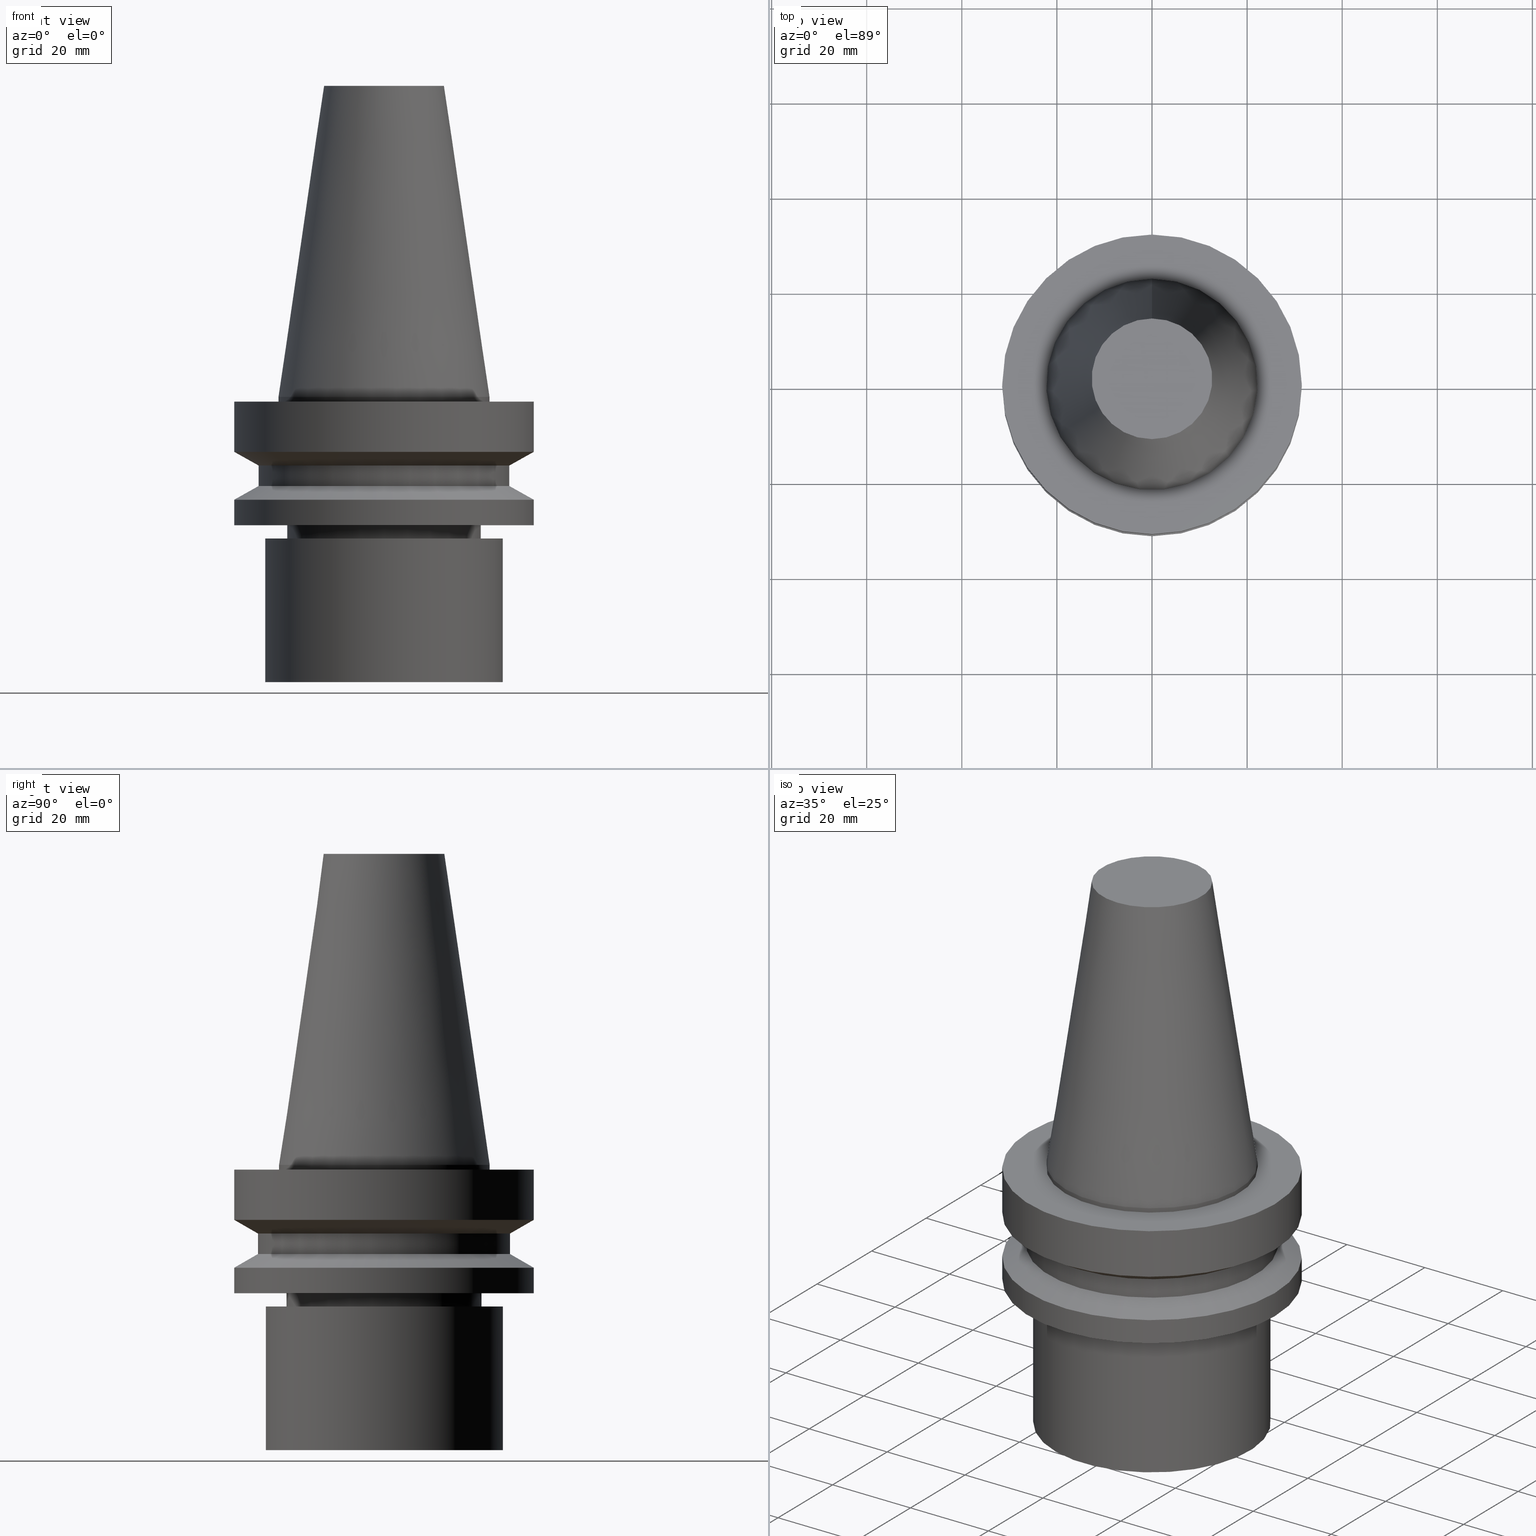
[diagram: canonical four-view strip — front | top / right | iso, engineering-drawing reading convention]
A machine part, canonical four-view strip (front | top / right | iso — engineering-drawing reading convention). The complete STEP part file that produces these views, byte-faithful:
ISO-10303-21;
HEADER;
FILE_DESCRIPTION((''),'1');
FILE_NAME('V:/90_\X2\53D65F9730C730FC30BF\X0\/00_\X2\6DE18DEF30C730FC30BF\X0\/ALL/BBT-BKUS\X2\FF76FF80FF9BFF78FF9E752852A05DE556F3\X0\201801/BBT40-MEGAER/BBT40-MEGAER32-60NL.stp','2018-02-07T02:26:05',(''),(''),'Spatial Interop R21 SP3','Kubotek KeyCreator 2011 V10.0.2 (22737)',' ');
FILE_SCHEMA(('automotive_design'));
ENDSEC;
DATA;
#1=MECHANICAL_DESIGN_GEOMETRIC_PRESENTATION_REPRESENTATION(' ',(#14,#15,#16,#17,#18,#19,#20,#21,#22,#23,#24,#25,#26,#27,#28,#29,#30,#31,#32,#33,#34,#35,#36,#37,#38,#39,#40,#41,#42,#43,#44,#45,#46,#47,#48,#49),#10);
#2=PRODUCT_DEFINITION_CONTEXT('',#50,'design');
#3=APPLICATION_PROTOCOL_DEFINITION('INTERNATIONAL STANDARD','automotive_design',1994,#50);
#4=PRODUCT_CATEGORY_RELATIONSHIP('NONE','NONE',#51,#52);
#5=SHAPE_DEFINITION_REPRESENTATION(#53,#54);
#6=PRODUCT_DEFINITION_CONTEXT('',#55,'design');
#7=APPLICATION_PROTOCOL_DEFINITION('INTERNATIONAL STANDARD','automotive_design',1994,#55);
#8=PRODUCT_CATEGORY_RELATIONSHIP('NONE','NONE',#56,#57);
#9=SHAPE_DEFINITION_REPRESENTATION(#58,#59);
#10= (GEOMETRIC_REPRESENTATION_CONTEXT(3)GLOBAL_UNCERTAINTY_ASSIGNED_CONTEXT((#62))GLOBAL_UNIT_ASSIGNED_CONTEXT((#64,#65,#66))REPRESENTATION_CONTEXT('NONE','WORKSPACE'));
#14=STYLED_ITEM('',(#68),#69);
#15=STYLED_ITEM('',(#70,#71),#72);
#16=STYLED_ITEM('',(#73),#74);
#17=STYLED_ITEM('',(#75,#76),#77);
#18=STYLED_ITEM('',(#78,#79),#80);
#19=STYLED_ITEM('',(#81),#82);
#20=STYLED_ITEM('',(#83,#84),#85);
#21=STYLED_ITEM('',(#86),#87);
#22=STYLED_ITEM('',(#88,#89),#90);
#23=STYLED_ITEM('',(#91),#92);
#24=STYLED_ITEM('',(#93,#94),#95);
#25=STYLED_ITEM('',(#96),#97);
#26=STYLED_ITEM('',(#98,#99),#100);
#27=STYLED_ITEM('',(#101,#102),#103);
#28=STYLED_ITEM('',(#104),#105);
#29=STYLED_ITEM('',(#106,#107),#108);
#30=STYLED_ITEM('',(#109),#110);
#31=STYLED_ITEM('',(#111,#112),#113);
#32=STYLED_ITEM('',(#114,#115),#116);
#33=STYLED_ITEM('',(#117),#118);
#34=STYLED_ITEM('',(#119),#120);
#35=STYLED_ITEM('',(#121),#122);
#36=STYLED_ITEM('',(#123,#124),#125);
#37=STYLED_ITEM('',(#126),#127);
#38=STYLED_ITEM('',(#128),#129);
#39=STYLED_ITEM('',(#130),#131);
#40=STYLED_ITEM('',(#132,#133),#134);
#41=STYLED_ITEM('',(#135),#136);
#42=STYLED_ITEM('',(#137,#138),#139);
#43=STYLED_ITEM('',(#140,#141),#142);
#44=STYLED_ITEM('',(#143,#144),#145);
#45=STYLED_ITEM('',(#146,#147),#148);
#46=STYLED_ITEM('',(#149,#150),#151);
#47=STYLED_ITEM('',(#152,#153),#154);
#48=STYLED_ITEM('',(#155,#156),#157);
#49=STYLED_ITEM('',(#158),#159);
#50=APPLICATION_CONTEXT(' ');
#51=PRODUCT_CATEGORY('part','NONE');
#52=PRODUCT_RELATED_PRODUCT_CATEGORY('detail',' ',(#160));
#53=PRODUCT_DEFINITION_SHAPE('NONE','NONE',#161);
#54=ADVANCED_BREP_SHAPE_REPRESENTATION('Unnamed[1]',(#108,#162),#10);
#55=APPLICATION_CONTEXT(' ');
#56=PRODUCT_CATEGORY('part','NONE');
#57=PRODUCT_RELATED_PRODUCT_CATEGORY('detail',' ',(#163));
#58=PRODUCT_DEFINITION_SHAPE('NONE','NONE',#164);
#59=ADVANCED_BREP_SHAPE_REPRESENTATION('Unnamed[1]',(#116,#165),#10);
#62=UNCERTAINTY_MEASURE_WITH_UNIT(LENGTH_MEASURE(1.0E-006),#64,'','');
#64= (CONVERSION_BASED_UNIT('MILLIMETRE',#168)LENGTH_UNIT()NAMED_UNIT(#171));
#65= (NAMED_UNIT(#173)PLANE_ANGLE_UNIT()SI_UNIT($,.RADIAN.));
#66= (NAMED_UNIT(#173)SOLID_ANGLE_UNIT()SI_UNIT($,.STERADIAN.));
#68=PRESENTATION_STYLE_ASSIGNMENT((#179));
#69=EDGE_CURVE('Unnamed[1]',#180,#180,#181,.T.);
#70=PRESENTATION_STYLE_ASSIGNMENT((#182));
#71=PRESENTATION_STYLE_ASSIGNMENT((#183));
#72=ADVANCED_FACE('Unnamed[1]',(#184,#185),#186,.T.);
#73=PRESENTATION_STYLE_ASSIGNMENT((#187));
#74=EDGE_CURVE('Unnamed[1]',#188,#188,#189,.T.);
#75=PRESENTATION_STYLE_ASSIGNMENT((#190));
#76=PRESENTATION_STYLE_ASSIGNMENT((#191));
#77=ADVANCED_FACE('Unnamed[1]',(#192,#193),#194,.T.);
#78=PRESENTATION_STYLE_ASSIGNMENT((#195));
#79=PRESENTATION_STYLE_ASSIGNMENT((#196));
#80=ADVANCED_FACE('Unnamed[1]',(#197),#198,.T.);
#81=PRESENTATION_STYLE_ASSIGNMENT((#199));
#82=EDGE_CURVE('Unnamed[1]',#200,#200,#201,.T.);
#83=PRESENTATION_STYLE_ASSIGNMENT((#202));
#84=PRESENTATION_STYLE_ASSIGNMENT((#203));
#85=ADVANCED_FACE('Unnamed[1]',(#204,#205),#206,.T.);
#86=PRESENTATION_STYLE_ASSIGNMENT((#207));
#87=EDGE_CURVE('Unnamed[1]',#208,#208,#209,.T.);
#88=PRESENTATION_STYLE_ASSIGNMENT((#210));
#89=PRESENTATION_STYLE_ASSIGNMENT((#211));
#90=ADVANCED_FACE('Unnamed[1]',(#212,#213),#214,.T.);
#91=PRESENTATION_STYLE_ASSIGNMENT((#215));
#92=EDGE_CURVE('Unnamed[1]',#216,#216,#217,.T.);
#93=PRESENTATION_STYLE_ASSIGNMENT((#218));
#94=PRESENTATION_STYLE_ASSIGNMENT((#219));
#95=ADVANCED_FACE('Unnamed[1]',(#220,#221),#222,.T.);
#96=PRESENTATION_STYLE_ASSIGNMENT((#223));
#97=EDGE_CURVE('Unnamed[1]',#224,#224,#225,.T.);
#98=PRESENTATION_STYLE_ASSIGNMENT((#226));
#99=PRESENTATION_STYLE_ASSIGNMENT((#227));
#100=ADVANCED_FACE('Unnamed[1]',(#228,#229),#230,.T.);
#101=PRESENTATION_STYLE_ASSIGNMENT((#231));
#102=PRESENTATION_STYLE_ASSIGNMENT((#232));
#103=ADVANCED_FACE('Unnamed[1]',(#233,#234),#235,.T.);
#104=PRESENTATION_STYLE_ASSIGNMENT((#236));
#105=EDGE_CURVE('Unnamed[1]',#237,#237,#238,.T.);
#106=PRESENTATION_STYLE_ASSIGNMENT((#239));
#107=PRESENTATION_STYLE_ASSIGNMENT((#240));
#108=MANIFOLD_SOLID_BREP('Unnamed[1]',#241);
#109=PRESENTATION_STYLE_ASSIGNMENT((#242));
#110=EDGE_CURVE('Unnamed[1]',#243,#243,#244,.T.);
#111=PRESENTATION_STYLE_ASSIGNMENT((#245));
#112=PRESENTATION_STYLE_ASSIGNMENT((#246));
#113=ADVANCED_FACE('Unnamed[1]',(#247,#248),#249,.T.);
#114=PRESENTATION_STYLE_ASSIGNMENT((#250));
#115=PRESENTATION_STYLE_ASSIGNMENT((#251));
#116=MANIFOLD_SOLID_BREP('Unnamed[1]',#252);
#117=PRESENTATION_STYLE_ASSIGNMENT((#253));
#118=EDGE_CURVE('Unnamed[1]',#254,#254,#255,.T.);
#119=PRESENTATION_STYLE_ASSIGNMENT((#256));
#120=EDGE_CURVE('Unnamed[1]',#257,#257,#258,.T.);
#121=PRESENTATION_STYLE_ASSIGNMENT((#259));
#122=EDGE_CURVE('Unnamed[1]',#260,#260,#261,.T.);
#123=PRESENTATION_STYLE_ASSIGNMENT((#262));
#124=PRESENTATION_STYLE_ASSIGNMENT((#263));
#125=ADVANCED_FACE('Unnamed[1]',(#264,#265),#266,.T.);
#126=PRESENTATION_STYLE_ASSIGNMENT((#267));
#127=EDGE_CURVE('Unnamed[1]',#268,#268,#269,.T.);
#128=PRESENTATION_STYLE_ASSIGNMENT((#270));
#129=EDGE_CURVE('Unnamed[1]',#271,#271,#272,.T.);
#130=PRESENTATION_STYLE_ASSIGNMENT((#273));
#131=EDGE_CURVE('Unnamed[1]',#274,#274,#275,.T.);
#132=PRESENTATION_STYLE_ASSIGNMENT((#276));
#133=PRESENTATION_STYLE_ASSIGNMENT((#277));
#134=ADVANCED_FACE('Unnamed[1]',(#278,#279),#280,.T.);
#135=PRESENTATION_STYLE_ASSIGNMENT((#281));
#136=EDGE_CURVE('Unnamed[1]',#282,#282,#283,.T.);
#137=PRESENTATION_STYLE_ASSIGNMENT((#284));
#138=PRESENTATION_STYLE_ASSIGNMENT((#285));
#139=ADVANCED_FACE('Unnamed[1]',(#286),#287,.T.);
#140=PRESENTATION_STYLE_ASSIGNMENT((#288));
#141=PRESENTATION_STYLE_ASSIGNMENT((#289));
#142=ADVANCED_FACE('Unnamed[1]',(#290,#291),#292,.T.);
#143=PRESENTATION_STYLE_ASSIGNMENT((#293));
#144=PRESENTATION_STYLE_ASSIGNMENT((#294));
#145=ADVANCED_FACE('Unnamed[1]',(#295,#296),#297,.T.);
#146=PRESENTATION_STYLE_ASSIGNMENT((#298));
#147=PRESENTATION_STYLE_ASSIGNMENT((#299));
#148=ADVANCED_FACE('Unnamed[1]',(#300),#301,.T.);
#149=PRESENTATION_STYLE_ASSIGNMENT((#302));
#150=PRESENTATION_STYLE_ASSIGNMENT((#303));
#151=ADVANCED_FACE('Unnamed[1]',(#304,#305),#306,.T.);
#152=PRESENTATION_STYLE_ASSIGNMENT((#307));
#153=PRESENTATION_STYLE_ASSIGNMENT((#308));
#154=ADVANCED_FACE('Unnamed[1]',(#309),#310,.T.);
#155=PRESENTATION_STYLE_ASSIGNMENT((#311));
#156=PRESENTATION_STYLE_ASSIGNMENT((#312));
#157=ADVANCED_FACE('Unnamed[1]',(#313,#314),#315,.T.);
#158=PRESENTATION_STYLE_ASSIGNMENT((#316));
#159=EDGE_CURVE('Unnamed[1]',#317,#317,#318,.T.);
#160=PRODUCT('Unnamed[1]','Unnamed[1]','PART-Unnamed[1]-DESC',(#319));
#161=PRODUCT_DEFINITION('NONE','NONE',#320,#2);
#162=AXIS2_PLACEMENT_3D('',#321,#322,#323);
#163=PRODUCT('Unnamed[1]','Unnamed[1]','PART-Unnamed[1]-DESC',(#324));
#164=PRODUCT_DEFINITION('NONE','NONE',#325,#6);
#165=AXIS2_PLACEMENT_3D('',#326,#327,#328);
#168=LENGTH_MEASURE_WITH_UNIT(LENGTH_MEASURE(1.0),#329);
#171=DIMENSIONAL_EXPONENTS(1.0,0.0,0.0,0.0,0.0,0.0,0.0);
#173=DIMENSIONAL_EXPONENTS(0.0,0.0,0.0,0.0,0.0,0.0,0.0);
#179=CURVE_STYLE('',#330,POSITIVE_LENGTH_MEASURE(1000.0),#331);
#180=VERTEX_POINT('',#332);
#181=CIRCLE('',#333,31.5000000000004);
#182=SURFACE_STYLE_USAGE(.BOTH.,#334);
#183=CURVE_STYLE('',#335,POSITIVE_LENGTH_MEASURE(1000.0),#336);
#184=FACE_OUTER_BOUND('',#337,.T.);
#185=FACE_BOUND('',#338,.T.);
#186=PLANE('',#339);
#187=CURVE_STYLE('',#340,POSITIVE_LENGTH_MEASURE(1000.0),#341);
#188=VERTEX_POINT('',#342);
#189=CIRCLE('',#343,25.0);
#190=SURFACE_STYLE_USAGE(.BOTH.,#344);
#191=CURVE_STYLE('',#345,POSITIVE_LENGTH_MEASURE(1000.0),#346);
#192=FACE_BOUND('',#347,.T.);
#193=FACE_BOUND('',#348,.T.);
#194=CYLINDRICAL_SURFACE('',#349,26.4999999999997);
#195=SURFACE_STYLE_USAGE(.BOTH.,#350);
#196=CURVE_STYLE('',#351,POSITIVE_LENGTH_MEASURE(1000.0),#352);
#197=FACE_OUTER_BOUND('',#353,.T.);
#198=PLANE('',#354);
#199=CURVE_STYLE('',#355,POSITIVE_LENGTH_MEASURE(1000.0),#356);
#200=VERTEX_POINT('',#357);
#201=CIRCLE('',#358,12.6875000000001);
#202=SURFACE_STYLE_USAGE(.BOTH.,#359);
#203=CURVE_STYLE('',#360,POSITIVE_LENGTH_MEASURE(1000.0),#361);
#204=FACE_BOUND('',#362,.T.);
#205=FACE_BOUND('',#363,.T.);
#206=CONICAL_SURFACE('',#364,28.9999999999999,1.04719755119657);
#207=CURVE_STYLE('',#365,POSITIVE_LENGTH_MEASURE(1000.0),#366);
#208=VERTEX_POINT('',#367);
#209=CIRCLE('',#368,20.0);
#210=SURFACE_STYLE_USAGE(.BOTH.,#369);
#211=CURVE_STYLE('',#370,POSITIVE_LENGTH_MEASURE(1000.0),#371);
#212=FACE_BOUND('',#372,.T.);
#213=FACE_BOUND('',#373,.T.);
#214=CONICAL_SURFACE('',#374,29.0000000000004,1.04719755119651);
#215=CURVE_STYLE('',#375,POSITIVE_LENGTH_MEASURE(1000.0),#376);
#216=VERTEX_POINT('',#377);
#217=CIRCLE('',#378,31.5000000000004);
#218=SURFACE_STYLE_USAGE(.BOTH.,#379);
#219=CURVE_STYLE('',#380,POSITIVE_LENGTH_MEASURE(1000.0),#381);
#220=FACE_BOUND('',#382,.T.);
#221=FACE_BOUND('',#383,.T.);
#222=CYLINDRICAL_SURFACE('',#384,22.225);
#223=CURVE_STYLE('',#385,POSITIVE_LENGTH_MEASURE(1000.0),#386);
#224=VERTEX_POINT('',#387);
#225=CIRCLE('',#388,20.4999999999911);
#226=SURFACE_STYLE_USAGE(.BOTH.,#389);
#227=CURVE_STYLE('',#390,POSITIVE_LENGTH_MEASURE(1000.0),#391);
#228=FACE_BOUND('',#392,.T.);
#229=FACE_BOUND('',#393,.T.);
#230=CYLINDRICAL_SURFACE('',#394,31.5);
#231=SURFACE_STYLE_USAGE(.BOTH.,#395);
#232=CURVE_STYLE('',#396,POSITIVE_LENGTH_MEASURE(1000.0),#397);
#233=FACE_BOUND('',#398,.T.);
#234=FACE_BOUND('',#399,.T.);
#235=CONICAL_SURFACE('',#400,20.2500000000006,1.04719755120245);
#236=CURVE_STYLE('',#401,POSITIVE_LENGTH_MEASURE(1000.0),#402);
#237=VERTEX_POINT('',#403);
#238=CIRCLE('',#404,20.5000000000011);
#239=SURFACE_STYLE_USAGE(.BOTH.,#405);
#240=CURVE_STYLE('',#406,POSITIVE_LENGTH_MEASURE(1000.0),#407);
#241=CLOSED_SHELL('',(#80,#125,#95,#72,#100,#85,#77,#90,#142,#151,#134,#103,#145,#113,#154));
#242=CURVE_STYLE('',#408,POSITIVE_LENGTH_MEASURE(1000.0),#409);
#243=VERTEX_POINT('',#410);
#244=CIRCLE('',#411,20.0);
#245=SURFACE_STYLE_USAGE(.BOTH.,#412);
#246=CURVE_STYLE('',#413,POSITIVE_LENGTH_MEASURE(1000.0),#414);
#247=FACE_BOUND('',#415,.T.);
#248=FACE_BOUND('',#416,.T.);
#249=CONICAL_SURFACE('',#417,19.4499999999999,0.523598775598221);
#250=SURFACE_STYLE_USAGE(.BOTH.,#418);
#251=CURVE_STYLE('',#419,POSITIVE_LENGTH_MEASURE(1000.0),#420);
#252=CLOSED_SHELL('',(#139,#148,#157));
#253=CURVE_STYLE('',#421,POSITIVE_LENGTH_MEASURE(1000.0),#422);
#254=VERTEX_POINT('',#423);
#255=CIRCLE('',#424,26.4999999999994);
#256=CURVE_STYLE('',#425,POSITIVE_LENGTH_MEASURE(1000.0),#426);
#257=VERTEX_POINT('',#427);
#258=CIRCLE('',#428,31.5000000000007);
#259=CURVE_STYLE('',#429,POSITIVE_LENGTH_MEASURE(1000.0),#430);
#260=VERTEX_POINT('',#431);
#261=CIRCLE('',#432,25.0);
#262=SURFACE_STYLE_USAGE(.BOTH.,#433);
#263=CURVE_STYLE('',#434,POSITIVE_LENGTH_MEASURE(1000.0),#435);
#264=FACE_BOUND('',#436,.T.);
#265=FACE_BOUND('',#437,.T.);
#266=CONICAL_SURFACE('',#438,17.4562500000001,0.144812498238936);
#267=CURVE_STYLE('',#439,POSITIVE_LENGTH_MEASURE(1000.0),#440);
#268=VERTEX_POINT('',#441);
#269=CIRCLE('',#442,31.4999999999997);
#270=CURVE_STYLE('',#443,POSITIVE_LENGTH_MEASURE(1000.0),#444);
#271=VERTEX_POINT('',#445);
#272=CIRCLE('',#446,26.5);
#273=CURVE_STYLE('',#447,POSITIVE_LENGTH_MEASURE(1000.0),#448);
#274=VERTEX_POINT('',#449);
#275=CIRCLE('',#450,18.8999999999997);
#276=SURFACE_STYLE_USAGE(.BOTH.,#451);
#277=CURVE_STYLE('',#452,POSITIVE_LENGTH_MEASURE(1000.0),#453);
#278=FACE_BOUND('',#454,.T.);
#279=FACE_BOUND('',#455,.T.);
#280=CYLINDRICAL_SURFACE('',#456,20.4999999999961);
#281=CURVE_STYLE('',#457,POSITIVE_LENGTH_MEASURE(1000.0),#458);
#282=VERTEX_POINT('',#459);
#283=CIRCLE('',#460,22.225);
#284=SURFACE_STYLE_USAGE(.BOTH.,#461);
#285=CURVE_STYLE('',#462,POSITIVE_LENGTH_MEASURE(1000.0),#463);
#286=FACE_OUTER_BOUND('',#464,.T.);
#287=PLANE('',#465);
#288=SURFACE_STYLE_USAGE(.BOTH.,#466);
#289=CURVE_STYLE('',#467,POSITIVE_LENGTH_MEASURE(1000.0),#468);
#290=FACE_BOUND('',#469,.T.);
#291=FACE_BOUND('',#470,.T.);
#292=CYLINDRICAL_SURFACE('',#471,31.5000000000005);
#293=SURFACE_STYLE_USAGE(.BOTH.,#472);
#294=CURVE_STYLE('',#473,POSITIVE_LENGTH_MEASURE(1000.0),#474);
#295=FACE_BOUND('',#475,.T.);
#296=FACE_BOUND('',#476,.T.);
#297=CYLINDRICAL_SURFACE('',#477,20.0);
#298=SURFACE_STYLE_USAGE(.BOTH.,#478);
#299=CURVE_STYLE('',#479,POSITIVE_LENGTH_MEASURE(1000.0),#480);
#300=FACE_OUTER_BOUND('',#481,.T.);
#301=PLANE('',#482);
#302=SURFACE_STYLE_USAGE(.BOTH.,#483);
#303=CURVE_STYLE('',#484,POSITIVE_LENGTH_MEASURE(1000.0),#485);
#304=FACE_BOUND('',#486,.T.);
#305=FACE_OUTER_BOUND('',#487,.T.);
#306=PLANE('',#488);
#307=SURFACE_STYLE_USAGE(.BOTH.,#489);
#308=CURVE_STYLE('',#490,POSITIVE_LENGTH_MEASURE(1000.0),#491);
#309=FACE_OUTER_BOUND('',#492,.T.);
#310=PLANE('',#493);
#311=SURFACE_STYLE_USAGE(.BOTH.,#494);
#312=CURVE_STYLE('',#495,POSITIVE_LENGTH_MEASURE(1000.0),#496);
#313=FACE_BOUND('',#497,.T.);
#314=FACE_BOUND('',#498,.T.);
#315=CYLINDRICAL_SURFACE('',#499,25.0);
#316=CURVE_STYLE('',#500,POSITIVE_LENGTH_MEASURE(1000.0),#501);
#317=VERTEX_POINT('',#502);
#318=CIRCLE('',#503,22.225);
#319=PRODUCT_CONTEXT('',#50,'mechanical');
#320=PRODUCT_DEFINITION_FORMATION_WITH_SPECIFIED_SOURCE(' ','NONE',#160,.NOT_KNOWN.);
#321=CARTESIAN_POINT('',(0.0,0.0,0.0));
#322=DIRECTION('',(0.0,0.0,1.0));
#323=DIRECTION('',(1.0,0.0,0.0));
#324=PRODUCT_CONTEXT('',#55,'mechanical');
#325=PRODUCT_DEFINITION_FORMATION_WITH_SPECIFIED_SOURCE(' ','NONE',#163,.NOT_KNOWN.);
#326=CARTESIAN_POINT('',(0.0,0.0,0.0));
#327=DIRECTION('',(0.0,0.0,1.0));
#328=DIRECTION('',(1.0,0.0,0.0));
#329= (NAMED_UNIT(#171)LENGTH_UNIT()SI_UNIT(.MILLI.,.METRE.));
#330=DRAUGHTING_PRE_DEFINED_CURVE_FONT('continuous');
#331=COLOUR_RGB('',0.0,1.0,0.0);
#332=CARTESIAN_POINT('',(1.65328282719222E-015,31.5000000000004,-27.0001575694036));
#333=AXIS2_PLACEMENT_3D('',#505,#506,#507);
#334=SURFACE_SIDE_STYLE('',(#508));
#335=DRAUGHTING_PRE_DEFINED_CURVE_FONT('continuous');
#336=COLOUR_RGB('',0.0,1.0,0.0);
#337=EDGE_LOOP('',(#509));
#338=EDGE_LOOP('',(#510));
#339=AXIS2_PLACEMENT_3D('',#511,#512,#513);
#340=DRAUGHTING_PRE_DEFINED_CURVE_FONT('continuous');
#341=COLOUR_RGB('',0.0,1.0,0.0);
#342=CARTESIAN_POINT('',(1.82472373072956E-015,25.0,-29.8));
#343=AXIS2_PLACEMENT_3D('',#514,#515,#516);
#344=SURFACE_SIDE_STYLE('',(#517));
#345=DRAUGHTING_PRE_DEFINED_CURVE_FONT('continuous');
#346=COLOUR_RGB('',0.0,1.0,0.0);
#347=EDGE_LOOP('',(#518));
#348=EDGE_LOOP('',(#519));
#349=AXIS2_PLACEMENT_3D('',#520,#521,#522);
#350=SURFACE_SIDE_STYLE('',(#523));
#351=DRAUGHTING_PRE_DEFINED_CURVE_FONT('continuous');
#352=COLOUR_RGB('',0.0,1.0,0.0);
#353=EDGE_LOOP('',(#524));
#354=AXIS2_PLACEMENT_3D('',#525,#526,#527);
#355=DRAUGHTING_PRE_DEFINED_CURVE_FONT('continuous');
#356=COLOUR_RGB('',0.0,1.0,0.0);
#357=CARTESIAN_POINT('',(-4.00459503321185E-015,12.6875000000002,65.4000000000001));
#358=AXIS2_PLACEMENT_3D('',#528,#529,#530);
#359=SURFACE_SIDE_STYLE('',(#531));
#360=DRAUGHTING_PRE_DEFINED_CURVE_FONT('continuous');
#361=COLOUR_RGB('',0.0,1.0,0.0);
#362=EDGE_LOOP('',(#532));
#363=EDGE_LOOP('',(#533));
#364=AXIS2_PLACEMENT_3D('',#534,#535,#536);
#365=DRAUGHTING_PRE_DEFINED_CURVE_FONT('continuous');
#366=COLOUR_RGB('',0.0,1.0,0.0);
#367=CARTESIAN_POINT('',(2.88372138165122E-015,20.0,-47.0947441116734));
#368=AXIS2_PLACEMENT_3D('',#537,#538,#539);
#369=SURFACE_SIDE_STYLE('',(#540));
#370=DRAUGHTING_PRE_DEFINED_CURVE_FONT('continuous');
#371=COLOUR_RGB('',0.0,1.0,0.0);
#372=EDGE_LOOP('',(#541));
#373=EDGE_LOOP('',(#542));
#374=AXIS2_PLACEMENT_3D('',#543,#544,#545);
#375=DRAUGHTING_PRE_DEFINED_CURVE_FONT('continuous');
#376=COLOUR_RGB('',0.0,1.0,0.0);
#377=CARTESIAN_POINT('',(7.08182973902924E-016,31.5000000000004,-11.5655056526664));
#378=AXIS2_PLACEMENT_3D('',#546,#547,#548);
#379=SURFACE_SIDE_STYLE('',(#549));
#380=DRAUGHTING_PRE_DEFINED_CURVE_FONT('continuous');
#381=COLOUR_RGB('',0.0,1.0,0.0);
#382=EDGE_LOOP('',(#550));
#383=EDGE_LOOP('',(#551));
#384=AXIS2_PLACEMENT_3D('',#552,#553,#554);
#385=DRAUGHTING_PRE_DEFINED_CURVE_FONT('continuous');
#386=COLOUR_RGB('',0.0,1.0,0.0);
#387=CARTESIAN_POINT('',(1.65328282719227E-015,20.4999999999911,-27.0001575694044));
#388=AXIS2_PLACEMENT_3D('',#555,#556,#557);
#389=SURFACE_SIDE_STYLE('',(#558));
#390=DRAUGHTING_PRE_DEFINED_CURVE_FONT('continuous');
#391=COLOUR_RGB('',0.0,1.0,0.0);
#392=EDGE_LOOP('',(#559));
#393=EDGE_LOOP('',(#560));
#394=AXIS2_PLACEMENT_3D('',#561,#562,#563);
#395=SURFACE_SIDE_STYLE('',(#564));
#396=DRAUGHTING_PRE_DEFINED_CURVE_FONT('continuous');
#397=COLOUR_RGB('',0.0,1.0,0.0);
#398=EDGE_LOOP('',(#565));
#399=EDGE_LOOP('',(#566));
#400=AXIS2_PLACEMENT_3D('',#567,#568,#569);
#401=DRAUGHTING_PRE_DEFINED_CURVE_FONT('continuous');
#402=COLOUR_RGB('',0.0,1.0,0.0);
#403=CARTESIAN_POINT('',(2.03361678293588E-015,20.5000000000011,-33.211482434801));
#404=AXIS2_PLACEMENT_3D('',#570,#571,#572);
#405=SURFACE_SIDE_STYLE('',(#573));
#406=DRAUGHTING_PRE_DEFINED_CURVE_FONT('continuous');
#407=COLOUR_RGB('',0.0,1.0,0.0);
#408=DRAUGHTING_PRE_DEFINED_CURVE_FONT('continuous');
#409=COLOUR_RGB('',0.0,1.0,0.0);
#410=CARTESIAN_POINT('',(2.05129303691443E-015,20.0,-33.5001575693926));
#411=AXIS2_PLACEMENT_3D('',#574,#575,#576);
#412=SURFACE_SIDE_STYLE('',(#577));
#413=DRAUGHTING_PRE_DEFINED_CURVE_FONT('continuous');
#414=COLOUR_RGB('',0.0,1.0,0.0);
#415=EDGE_LOOP('',(#578));
#416=EDGE_LOOP('',(#579));
#417=AXIS2_PLACEMENT_3D('',#580,#581,#582);
#418=SURFACE_SIDE_STYLE('',(#583));
#419=DRAUGHTING_PRE_DEFINED_CURVE_FONT('continuous');
#420=COLOUR_RGB('',0.0,1.0,0.0);
#421=DRAUGHTING_PRE_DEFINED_CURVE_FONT('continuous');
#422=COLOUR_RGB('',0.0,1.0,0.0);
#423=CARTESIAN_POINT('',(8.8494551369045E-016,26.4999999999995,-14.4522569986152));
#424=AXIS2_PLACEMENT_3D('',#584,#585,#586);
#425=DRAUGHTING_PRE_DEFINED_CURVE_FONT('continuous');
#426=COLOUR_RGB('',0.0,1.0,0.0);
#427=CARTESIAN_POINT('',(1.32473071268174E-015,31.5000000000007,-21.6344943473346));
#428=AXIS2_PLACEMENT_3D('',#587,#588,#589);
#429=DRAUGHTING_PRE_DEFINED_CURVE_FONT('continuous');
#430=COLOUR_RGB('',0.0,1.0,0.0);
#431=CARTESIAN_POINT('',(3.67394039744206E-015,25.0,-60.0));
#432=AXIS2_PLACEMENT_3D('',#590,#591,#592);
#433=SURFACE_SIDE_STYLE('',(#593));
#434=DRAUGHTING_PRE_DEFINED_CURVE_FONT('continuous');
#435=COLOUR_RGB('',0.0,1.0,0.0);
#436=EDGE_LOOP('',(#594));
#437=EDGE_LOOP('',(#595));
#438=AXIS2_PLACEMENT_3D('',#596,#597,#598);
#439=DRAUGHTING_PRE_DEFINED_CURVE_FONT('continuous');
#440=COLOUR_RGB('',0.0,1.0,0.0);
#441=CARTESIAN_POINT('',(6.12323399573568E-017,31.4999999999997,-0.999999999999825));
#442=AXIS2_PLACEMENT_3D('',#599,#600,#601);
#443=DRAUGHTING_PRE_DEFINED_CURVE_FONT('continuous');
#444=COLOUR_RGB('',0.0,1.0,0.0);
#445=CARTESIAN_POINT('',(1.1479681728942E-015,26.5,-18.7477430013855));
#446=AXIS2_PLACEMENT_3D('',#602,#603,#604);
#447=DRAUGHTING_PRE_DEFINED_CURVE_FONT('continuous');
#448=COLOUR_RGB('',0.0,1.0,0.0);
#449=CARTESIAN_POINT('',(3.00038465791102E-015,18.8999999999997,-49.0000000000001));
#450=AXIS2_PLACEMENT_3D('',#605,#606,#607);
#451=SURFACE_SIDE_STYLE('',(#608));
#452=DRAUGHTING_PRE_DEFINED_CURVE_FONT('continuous');
#453=COLOUR_RGB('',0.0,1.0,0.0);
#454=EDGE_LOOP('',(#609));
#455=EDGE_LOOP('',(#610));
#456=AXIS2_PLACEMENT_3D('',#611,#612,#613);
#457=DRAUGHTING_PRE_DEFINED_CURVE_FONT('continuous');
#458=COLOUR_RGB('',0.0,1.0,0.0);
#459=CARTESIAN_POINT('',(1.71319921032766E-029,22.2250000000001,-2.8153873565375E-013));
#460=AXIS2_PLACEMENT_3D('',#614,#615,#616);
#461=SURFACE_SIDE_STYLE('',(#617));
#462=DRAUGHTING_PRE_DEFINED_CURVE_FONT('continuous');
#463=COLOUR_RGB('',0.0,1.0,0.0);
#464=EDGE_LOOP('',(#618));
#465=AXIS2_PLACEMENT_3D('',#619,#620,#621);
#466=SURFACE_SIDE_STYLE('',(#622));
#467=DRAUGHTING_PRE_DEFINED_CURVE_FONT('continuous');
#468=COLOUR_RGB('',0.0,1.0,0.0);
#469=EDGE_LOOP('',(#623));
#470=EDGE_LOOP('',(#624));
#471=AXIS2_PLACEMENT_3D('',#625,#626,#627);
#472=SURFACE_SIDE_STYLE('',(#628));
#473=DRAUGHTING_PRE_DEFINED_CURVE_FONT('continuous');
#474=COLOUR_RGB('',0.0,1.0,0.0);
#475=EDGE_LOOP('',(#629));
#476=EDGE_LOOP('',(#630));
#477=AXIS2_PLACEMENT_3D('',#631,#632,#633);
#478=SURFACE_SIDE_STYLE('',(#634));
#479=DRAUGHTING_PRE_DEFINED_CURVE_FONT('continuous');
#480=COLOUR_RGB('',0.0,1.0,0.0);
#481=EDGE_LOOP('',(#635));
#482=AXIS2_PLACEMENT_3D('',#636,#637,#638);
#483=SURFACE_SIDE_STYLE('',(#639));
#484=DRAUGHTING_PRE_DEFINED_CURVE_FONT('continuous');
#485=COLOUR_RGB('',0.0,1.0,0.0);
#486=EDGE_LOOP('',(#640));
#487=EDGE_LOOP('',(#641));
#488=AXIS2_PLACEMENT_3D('',#642,#643,#644);
#489=SURFACE_SIDE_STYLE('',(#645));
#490=DRAUGHTING_PRE_DEFINED_CURVE_FONT('continuous');
#491=COLOUR_RGB('',0.0,1.0,0.0);
#492=EDGE_LOOP('',(#646));
#493=AXIS2_PLACEMENT_3D('',#647,#648,#649);
#494=SURFACE_SIDE_STYLE('',(#650));
#495=DRAUGHTING_PRE_DEFINED_CURVE_FONT('continuous');
#496=COLOUR_RGB('',0.0,1.0,0.0);
#497=EDGE_LOOP('',(#651));
#498=EDGE_LOOP('',(#652));
#499=AXIS2_PLACEMENT_3D('',#653,#654,#655);
#500=DRAUGHTING_PRE_DEFINED_CURVE_FONT('continuous');
#501=COLOUR_RGB('',0.0,1.0,0.0);
#502=CARTESIAN_POINT('',(6.12323399573622E-017,22.2250000000001,-0.999999999999912));
#503=AXIS2_PLACEMENT_3D('',#656,#657,#658);
#505=CARTESIAN_POINT('',(1.65328282719222E-015,6.5385755798775E-015,-27.0001575694036));
#506=DIRECTION('',(6.12323399573676E-017,-7.56206108338726E-016,-1.0));
#507=DIRECTION('',(4.14771167728632E-032,1.0,-7.56206108338726E-016));
#508=SURFACE_STYLE_FILL_AREA(#659);
#509=ORIENTED_EDGE('',*,*,#127,.F.);
#510=ORIENTED_EDGE('',*,*,#159,.T.);
#511=CARTESIAN_POINT('',(6.12323399573595E-017,26.8624999999999,-0.999999999999869));
#512=DIRECTION('',(-6.12323399573677E-017,-9.35138060429241E-015,1.0));
#513=DIRECTION('',(5.77434068963536E-031,-1.0,-9.35138060429241E-015));
#514=CARTESIAN_POINT('',(1.82472373072956E-015,4.42131763147453E-015,-29.8));
#515=DIRECTION('',(6.12323399573677E-017,-7.56206108338741E-016,-1.0));
#516=DIRECTION('',(4.14771167728668E-032,1.0,-7.56206108338741E-016));
#517=SURFACE_STYLE_FILL_AREA(#660);
#518=ORIENTED_EDGE('',*,*,#129,.F.);
#519=ORIENTED_EDGE('',*,*,#118,.T.);
#520=CARTESIAN_POINT('',(1.01645684329232E-015,1.44032382615457E-014,-16.6000000000003));
#521=DIRECTION('',(6.12323399573677E-017,-7.56206108338727E-016,-1.0));
#522=DIRECTION('',(4.14771167728652E-032,1.0,-7.56206108338727E-016));
#523=SURFACE_STYLE_FILL_AREA(#661);
#524=ORIENTED_EDGE('',*,*,#82,.F.);
#525=CARTESIAN_POINT('',(-4.00459503321185E-015,6.34375000000014,65.4000000000001));
#526=DIRECTION('',(-6.12323399573677E-017,9.97602686800683E-016,1.0));
#527=DIRECTION('',(-5.62583941297938E-032,-1.0,9.97602686800683E-016));
#528=CARTESIAN_POINT('',(-4.00459503321185E-015,7.64121391453228E-014,65.4000000000001));
#529=DIRECTION('',(6.12323399573677E-017,-7.56206108338769E-016,-1.0));
#530=DIRECTION('',(4.14771167728707E-032,1.0,-7.56206108338769E-016));
#531=SURFACE_STYLE_FILL_AREA(#662);
#532=ORIENTED_EDGE('',*,*,#118,.F.);
#533=ORIENTED_EDGE('',*,*,#92,.T.);
#534=CARTESIAN_POINT('',(7.96564243796686E-016,1.71188641388657E-014,-13.0088813256407));
#535=DIRECTION('',(-6.12323399573677E-017,7.56206108338731E-016,1.0));
#536=DIRECTION('',(4.14771167728659E-032,1.0,-7.56206108338731E-016));
#537=CARTESIAN_POINT('',(2.88372138165122E-015,-8.65707350792838E-015,-47.0947441116734));
#538=DIRECTION('',(6.12323399573677E-017,-7.56206108338735E-016,-1.0));
#539=DIRECTION('',(4.14771167728643E-032,1.0,-7.56206108338735E-016));
#540=SURFACE_STYLE_FILL_AREA(#663);
#541=ORIENTED_EDGE('',*,*,#120,.F.);
#542=ORIENTED_EDGE('',*,*,#129,.T.);
#543=CARTESIAN_POINT('',(1.23634944278797E-015,1.16876123842255E-014,-20.1911186743601));
#544=DIRECTION('',(6.12323399573677E-017,-7.56206108338719E-016,-1.0));
#545=DIRECTION('',(4.14771167728621E-032,1.0,-7.56206108338719E-016));
#546=CARTESIAN_POINT('',(7.08182973902922E-016,1.82103536393965E-014,-11.5655056526663));
#547=DIRECTION('',(6.12323399573677E-017,-7.56206108338727E-016,-1.0));
#548=DIRECTION('',(4.14771167728632E-032,1.0,-7.56206108338727E-016));
#549=SURFACE_STYLE_FILL_AREA(#664);
#550=ORIENTED_EDGE('',*,*,#159,.F.);
#551=ORIENTED_EDGE('',*,*,#136,.T.);
#552=CARTESIAN_POINT('',(3.06161699786886E-017,2.65781566057996E-014,-0.500000000000078));
#553=DIRECTION('',(6.12323399573676E-017,-7.56206108338737E-016,-1.0));
#554=DIRECTION('',(4.14771167728644E-032,1.0,-7.56206108338737E-016));
#555=CARTESIAN_POINT('',(1.65328282719226E-015,6.53857557987689E-015,-27.0001575694044));
#556=DIRECTION('',(6.12323399573677E-017,-7.56206108338737E-016,-1.0));
#557=DIRECTION('',(4.14771167728657E-032,1.0,-7.56206108338737E-016));
#558=SURFACE_STYLE_FILL_AREA(#665);
#559=ORIENTED_EDGE('',*,*,#92,.F.);
#560=ORIENTED_EDGE('',*,*,#127,.T.);
#561=CARTESIAN_POINT('',(3.84707656930139E-016,2.22052035955134E-014,-6.28275282633307));
#562=DIRECTION('',(6.12323399573677E-017,-7.56206108338735E-016,-1.0));
#563=DIRECTION('',(4.14771167728636E-032,1.0,-7.56206108338735E-016));
#564=SURFACE_STYLE_FILL_AREA(#666);
#565=ORIENTED_EDGE('',*,*,#110,.F.);
#566=ORIENTED_EDGE('',*,*,#105,.T.);
#567=CARTESIAN_POINT('',(2.04245490992515E-015,1.73238482573587E-015,-33.3558200020968));
#568=DIRECTION('',(-6.12323399573676E-017,7.56206108338748E-016,1.0));
#569=DIRECTION('',(4.14771167728691E-032,1.0,-7.56206108338748E-016));
#570=CARTESIAN_POINT('',(2.03361678293588E-015,1.84153377578769E-015,-33.211482434801));
#571=DIRECTION('',(6.12323399573677E-017,-7.56206108338759E-016,-1.0));
#572=DIRECTION('',(4.14771167728694E-032,1.0,-7.56206108338759E-016));
#573=SURFACE_STYLE_FILL_AREA(#667);
#574=CARTESIAN_POINT('',(2.05129303691443E-015,1.62323587568404E-015,-33.5001575693925));
#575=DIRECTION('',(6.12323399573677E-017,-7.56206108338736E-016,-1.0));
#576=DIRECTION('',(4.14771167728666E-032,1.0,-7.56206108338736E-016));
#577=SURFACE_STYLE_FILL_AREA(#668);
#578=ORIENTED_EDGE('',*,*,#131,.F.);
#579=ORIENTED_EDGE('',*,*,#87,.T.);
#580=CARTESIAN_POINT('',(2.94205301978112E-015,-9.37745657827888E-015,-48.0473720558367));
#581=DIRECTION('',(-6.12323399573677E-017,7.56206108338724E-016,1.0));
#582=DIRECTION('',(4.14771167728641E-032,1.0,-7.56206108338724E-016));
#583=SURFACE_STYLE_FILL_AREA(#669);
#584=CARTESIAN_POINT('',(8.84945513690449E-016,1.60273746383349E-014,-14.4522569986152));
#585=DIRECTION('',(6.12323399573677E-017,-7.56206108338735E-016,-1.0));
#586=DIRECTION('',(4.14771167728657E-032,1.0,-7.56206108338736E-016));
#587=CARTESIAN_POINT('',(1.32473071268174E-015,1.05961228836946E-014,-21.6344943473346));
#588=DIRECTION('',(6.12323399573676E-017,-7.56206108338718E-016,-1.0));
#589=DIRECTION('',(4.14771167728656E-032,1.0,-7.56206108338718E-016));
#590=CARTESIAN_POINT('',(3.67394039744206E-015,-1.84161068403555E-014,-60.0));
#591=DIRECTION('',(6.12323399573677E-017,-7.56206108338741E-016,-1.0));
#592=DIRECTION('',(4.14771167728668E-032,1.0,-7.56206108338741E-016));
#593=SURFACE_STYLE_FILL_AREA(#670);
#594=ORIENTED_EDGE('',*,*,#136,.F.);
#595=ORIENTED_EDGE('',*,*,#82,.T.);
#596=CARTESIAN_POINT('',(-2.00229751660592E-015,5.16841994026458E-014,32.6999999999999));
#597=DIRECTION('',(6.12323399573677E-017,-7.56206108338749E-016,-1.0));
#598=DIRECTION('',(4.14771167728666E-032,1.0,-7.56206108338749E-016));
#599=CARTESIAN_POINT('',(6.12323399573555E-017,2.62000535516304E-014,-0.999999999999801));
#600=DIRECTION('',(6.12323399573676E-017,-7.56206108338743E-016,-1.0));
#601=DIRECTION('',(4.1477116772867E-032,1.0,-7.56206108338743E-016));
#602=CARTESIAN_POINT('',(1.1479681728942E-015,1.27791018847564E-014,-18.7477430013855));
#603=DIRECTION('',(6.12323399573677E-017,-7.56206108338719E-016,-1.0));
#604=DIRECTION('',(4.14771167728681E-032,1.0,-7.56206108338719E-016));
#605=CARTESIAN_POINT('',(3.00038465791102E-015,-1.00978396486294E-014,-49.0000000000001));
#606=DIRECTION('',(6.12323399573677E-017,-7.56206108338756E-016,-1.0));
#607=DIRECTION('',(4.14771167728662E-032,1.0,-7.56206108338756E-016));
#608=SURFACE_STYLE_FILL_AREA(#671);
#609=ORIENTED_EDGE('',*,*,#105,.F.);
#610=ORIENTED_EDGE('',*,*,#97,.T.);
#611=CARTESIAN_POINT('',(1.84344980506407E-015,4.19005467783229E-015,-30.1058200021027));
#612=DIRECTION('',(6.12323399573677E-017,-7.56206108338748E-016,-1.0));
#613=DIRECTION('',(4.14771167728665E-032,1.0,-7.56206108338748E-016));
#614=CARTESIAN_POINT('',(1.60980319096112E-029,2.69562596599688E-014,-2.62900812231237E-013));
#615=DIRECTION('',(6.12323399573677E-017,-7.56206108338737E-016,-1.0));
#616=DIRECTION('',(4.14771167728684E-032,1.0,-7.56206108338737E-016));
#617=SURFACE_STYLE_FILL_AREA(#672);
#618=ORIENTED_EDGE('',*,*,#122,.T.);
#619=CARTESIAN_POINT('',(3.67394039744206E-015,12.5,-60.0));
#620=DIRECTION('',(6.12323399573677E-017,-7.30186602997385E-016,-1.0));
#621=DIRECTION('',(3.98838815762823E-032,1.0,-7.30186602997385E-016));
#622=SURFACE_STYLE_FILL_AREA(#673);
#623=ORIENTED_EDGE('',*,*,#69,.F.);
#624=ORIENTED_EDGE('',*,*,#120,.T.);
#625=CARTESIAN_POINT('',(1.48900676993698E-015,8.56734923178605E-015,-24.3173259583691));
#626=DIRECTION('',(6.12323399573677E-017,-7.56206108338722E-016,-1.0));
#627=DIRECTION('',(4.14771167728658E-032,1.0,-7.56206108338722E-016));
#628=SURFACE_STYLE_FILL_AREA(#674);
#629=ORIENTED_EDGE('',*,*,#87,.F.);
#630=ORIENTED_EDGE('',*,*,#110,.T.);
#631=CARTESIAN_POINT('',(2.46750720928283E-015,-3.51691881612217E-015,-40.297450840533));
#632=DIRECTION('',(6.12323399573677E-017,-7.56206108338736E-016,-1.0));
#633=DIRECTION('',(4.14771167728644E-032,1.0,-7.56206108338736E-016));
#634=SURFACE_STYLE_FILL_AREA(#675);
#635=ORIENTED_EDGE('',*,*,#74,.F.);
#636=CARTESIAN_POINT('',(1.82472373072956E-015,12.5,-29.8));
#637=DIRECTION('',(-6.12323399573677E-017,7.30186602997386E-016,1.0));
#638=DIRECTION('',(-3.98838815762824E-032,-1.0,7.30186602997386E-016));
#639=SURFACE_STYLE_FILL_AREA(#676);
#640=ORIENTED_EDGE('',*,*,#97,.F.);
#641=ORIENTED_EDGE('',*,*,#69,.T.);
#642=CARTESIAN_POINT('',(1.65328282719224E-015,25.9999999999957,-27.000157569404));
#643=DIRECTION('',(6.12323399573677E-017,7.27916081098634E-014,-1.0));
#644=DIRECTION('',(-4.46202764655741E-030,1.0,7.27916081098634E-014));
#645=SURFACE_STYLE_FILL_AREA(#677);
#646=ORIENTED_EDGE('',*,*,#131,.T.);
#647=CARTESIAN_POINT('',(3.00038465791101E-015,9.44999999999984,-49.0));
#648=DIRECTION('',(6.12323399573677E-017,-1.41635797427753E-014,-1.0));
#649=DIRECTION('',(8.62441977092136E-031,1.0,-1.41635797427753E-014));
#650=SURFACE_STYLE_FILL_AREA(#678);
#651=ORIENTED_EDGE('',*,*,#122,.F.);
#652=ORIENTED_EDGE('',*,*,#74,.T.);
#653=CARTESIAN_POINT('',(2.74933206408581E-015,-6.99739460444046E-015,-44.9));
#654=DIRECTION('',(6.12323399573677E-017,-7.56206108338741E-016,-1.0));
#655=DIRECTION('',(4.14771167728668E-032,1.0,-7.56206108338741E-016));
#656=CARTESIAN_POINT('',(6.12323399573611E-017,2.62000535516303E-014,-0.999999999999893));
#657=DIRECTION('',(6.12323399573676E-017,-7.56206108338737E-016,-1.0));
#658=DIRECTION('',(4.14771167728644E-032,1.0,-7.56206108338737E-016));
#659=FILL_AREA_STYLE('',(#679));
#660=FILL_AREA_STYLE('',(#680));
#661=FILL_AREA_STYLE('',(#681));
#662=FILL_AREA_STYLE('',(#682));
#663=FILL_AREA_STYLE('',(#683));
#664=FILL_AREA_STYLE('',(#684));
#665=FILL_AREA_STYLE('',(#685));
#666=FILL_AREA_STYLE('',(#686));
#667=FILL_AREA_STYLE('',(#687));
#668=FILL_AREA_STYLE('',(#688));
#669=FILL_AREA_STYLE('',(#689));
#670=FILL_AREA_STYLE('',(#690));
#671=FILL_AREA_STYLE('',(#691));
#672=FILL_AREA_STYLE('',(#692));
#673=FILL_AREA_STYLE('',(#693));
#674=FILL_AREA_STYLE('',(#694));
#675=FILL_AREA_STYLE('',(#695));
#676=FILL_AREA_STYLE('',(#696));
#677=FILL_AREA_STYLE('',(#697));
#678=FILL_AREA_STYLE('',(#698));
#679=FILL_AREA_STYLE_COLOUR('',#699);
#680=FILL_AREA_STYLE_COLOUR('',#700);
#681=FILL_AREA_STYLE_COLOUR('',#701);
#682=FILL_AREA_STYLE_COLOUR('',#702);
#683=FILL_AREA_STYLE_COLOUR('',#703);
#684=FILL_AREA_STYLE_COLOUR('',#704);
#685=FILL_AREA_STYLE_COLOUR('',#705);
#686=FILL_AREA_STYLE_COLOUR('',#706);
#687=FILL_AREA_STYLE_COLOUR('',#707);
#688=FILL_AREA_STYLE_COLOUR('',#708);
#689=FILL_AREA_STYLE_COLOUR('',#709);
#690=FILL_AREA_STYLE_COLOUR('',#710);
#691=FILL_AREA_STYLE_COLOUR('',#711);
#692=FILL_AREA_STYLE_COLOUR('',#712);
#693=FILL_AREA_STYLE_COLOUR('',#713);
#694=FILL_AREA_STYLE_COLOUR('',#714);
#695=FILL_AREA_STYLE_COLOUR('',#715);
#696=FILL_AREA_STYLE_COLOUR('',#716);
#697=FILL_AREA_STYLE_COLOUR('',#717);
#698=FILL_AREA_STYLE_COLOUR('',#718);
#699=COLOUR_RGB('',0.0,1.0,0.0);
#700=COLOUR_RGB('',0.0,1.0,0.0);
#701=COLOUR_RGB('',0.0,1.0,0.0);
#702=COLOUR_RGB('',0.0,1.0,0.0);
#703=COLOUR_RGB('',0.0,1.0,0.0);
#704=COLOUR_RGB('',0.0,1.0,0.0);
#705=COLOUR_RGB('',0.0,1.0,0.0);
#706=COLOUR_RGB('',0.0,1.0,0.0);
#707=COLOUR_RGB('',0.0,1.0,0.0);
#708=COLOUR_RGB('',0.0,1.0,0.0);
#709=COLOUR_RGB('',0.0,1.0,0.0);
#710=COLOUR_RGB('',0.0,1.0,0.0);
#711=COLOUR_RGB('',0.0,1.0,0.0);
#712=COLOUR_RGB('',0.0,1.0,0.0);
#713=COLOUR_RGB('',0.0,1.0,0.0);
#714=COLOUR_RGB('',0.0,1.0,0.0);
#715=COLOUR_RGB('',0.0,1.0,0.0);
#716=COLOUR_RGB('',0.0,1.0,0.0);
#717=COLOUR_RGB('',0.0,1.0,0.0);
#718=COLOUR_RGB('',0.0,1.0,0.0);
ENDSEC;
END-ISO-10303-21;
